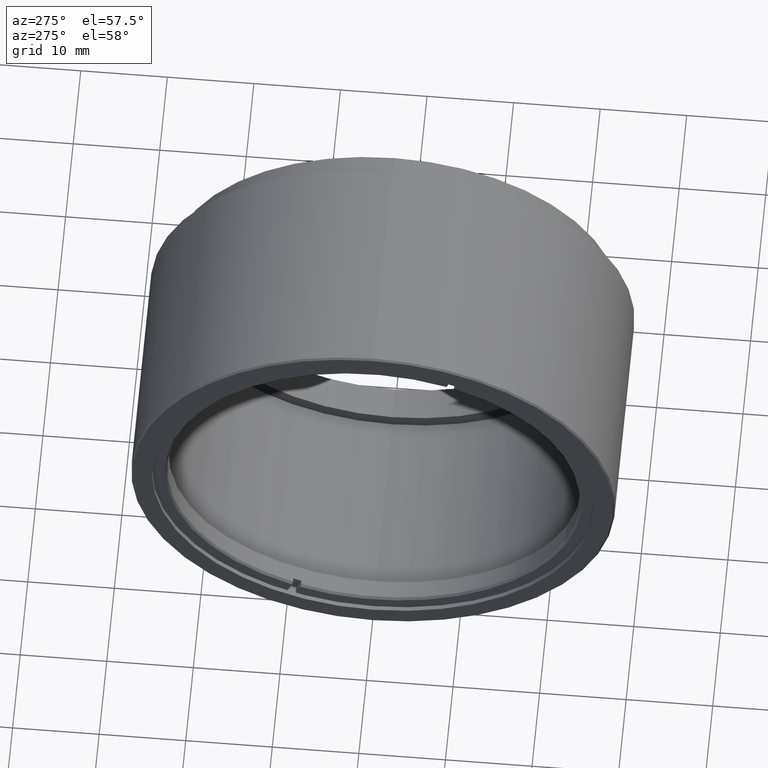
[diagram: clean part render]
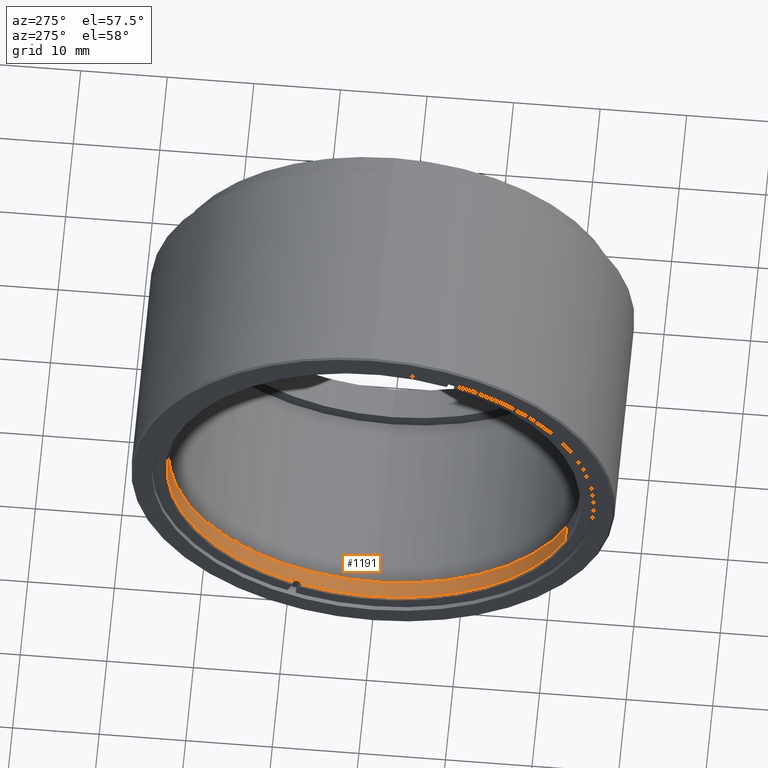
[diagram: same view with one face highlighted and labeled with its STEP entity id]
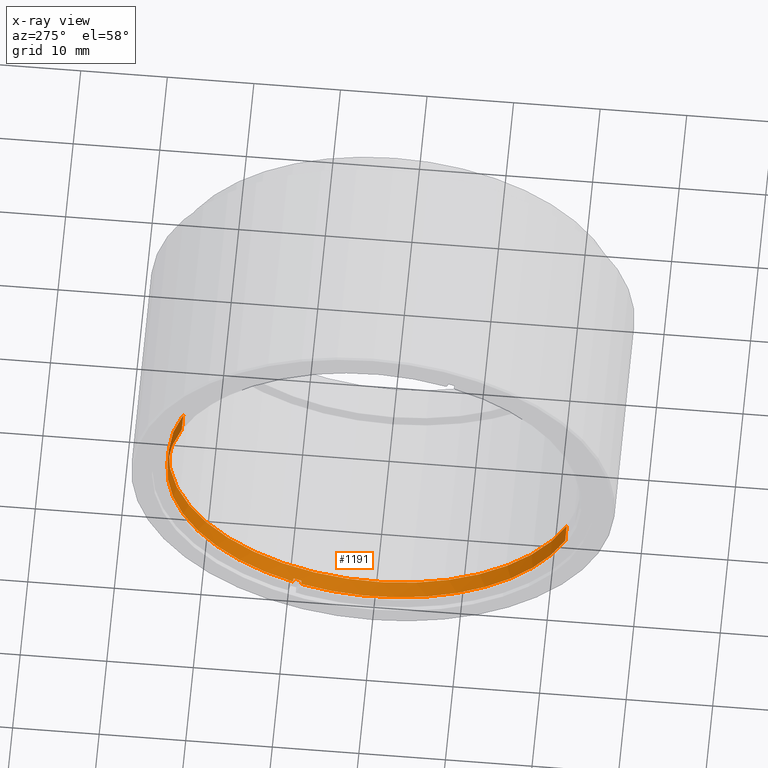
[diagram: x-ray of the same camera — body ghosted, the highlighted face saturated]
A machine part, auxiliary view. The second image highlights one B-rep face of the part: STEP entity #1191.
The next image is the same camera in x-ray: the body ghosted, the highlighted face saturated — about 0% of this face is hidden behind the body in this view.
In plain terms, the highlighted cylindrical surface (partial cylindrical patch) has radius 23.8445 mm, axis along (1, -0, 0).
Its self-contained STEP definition (entity closure, byte-faithful):
#11 = ORIENTED_EDGE ( 'NONE', *, *, #587, .T. ) ;
#44 = CARTESIAN_POINT ( 'NONE',  ( -22.17400000000001015, 2.039799741865230942, 8.832317631662180091 ) ) ;
#51 = CARTESIAN_POINT ( 'NONE',  ( -21.92399999999999238, -42.25694259900807026, -8.832317631662180091 ) ) ;
#73 = CARTESIAN_POINT ( 'NONE',  ( -22.17400000000001015, -11.74262936890998255, -22.32870783776767709 ) ) ;
#89 = DIRECTION ( 'NONE',  ( 1.000000000000000000, -0.000000000000000000, 0.000000000000000000 ) ) ;
#105 = DIRECTION ( 'NONE',  ( -1.000000000000000000, 0.000000000000000000, 0.000000000000000000 ) ) ;
#126 = LINE ( 'NONE', #73, #661 ) ;
#153 = CIRCLE ( 'NONE', #1583, 23.84450000000000003 ) ;
#164 = EDGE_LOOP ( 'NONE', ( #1399, #11, #243, #1204, #1638, #285, #1278, #224 ) ) ;
#175 = EDGE_CURVE ( 'NONE', #1437, #772, #1431, .T. ) ;
#201 = EDGE_CURVE ( 'NONE', #1171, #1541, #890, .T. ) ;
#224 = ORIENTED_EDGE ( 'NONE', *, *, #1564, .F. ) ;
#243 = ORIENTED_EDGE ( 'NONE', *, *, #175, .T. ) ;
#285 = ORIENTED_EDGE ( 'NONE', *, *, #201, .F. ) ;
#291 = CARTESIAN_POINT ( 'NONE',  ( -21.92399999999999238, -20.10857142857141966, 0.000000000000000000 ) ) ;
#292 = AXIS2_PLACEMENT_3D ( 'NONE', #1502, #89, #860 ) ;
#338 = CARTESIAN_POINT ( 'NONE',  ( -19.92400000000000659, -20.10857142857141966, 0.000000000000000000 ) ) ;
#341 = DIRECTION ( 'NONE',  ( 1.000000000000000000, -0.000000000000000000, 0.000000000000000000 ) ) ;
#446 = CARTESIAN_POINT ( 'NONE',  ( -21.47400000000001086, -10.81376228549717666, -21.95829463423385519 ) ) ;
#447 = CARTESIAN_POINT ( 'NONE',  ( -21.92399999999999594, -10.81376228549717666, -21.95829463423385519 ) ) ;
#456 = VECTOR ( 'NONE', #1132, 1000.000000000000000 ) ;
#491 = CARTESIAN_POINT ( 'NONE',  ( -21.47400000000001086, -20.10857142857141966, 0.000000000000000000 ) ) ;
#493 = AXIS2_PLACEMENT_3D ( 'NONE', #1181, #800, #1050 ) ;
#502 = EDGE_CURVE ( 'NONE', #1518, #1541, #1493, .T. ) ;
#537 = DIRECTION ( 'NONE',  ( 0.000000000000000000, -0.9288670834128058829, -0.3704132035338204010 ) ) ;
#540 = AXIS2_PLACEMENT_3D ( 'NONE', #291, #1303, #537 ) ;
#570 = LINE ( 'NONE', #1195, #959 ) ;
#587 = EDGE_CURVE ( 'NONE', #653, #1437, #570, .T. ) ;
#653 = VERTEX_POINT ( 'NONE', #51 ) ;
#661 = VECTOR ( 'NONE', #341, 1000.000000000000000 ) ;
#681 = DIRECTION ( 'NONE',  ( 1.000000000000000000, -0.000000000000000000, 0.000000000000000000 ) ) ;
#772 = VERTEX_POINT ( 'NONE', #1601 ) ;
#800 = DIRECTION ( 'NONE',  ( -1.000000000000000000, 0.000000000000000000, 0.000000000000000000 ) ) ;
#804 = AXIS2_PLACEMENT_3D ( 'NONE', #338, #1637, #1236 ) ;
#811 = EDGE_CURVE ( 'NONE', #1171, #970, #153, .T. ) ;
#812 = CARTESIAN_POINT ( 'NONE',  ( -21.92399999999999238, 2.039799741865230942, 8.832317631662180091 ) ) ;
#844 = DIRECTION ( 'NONE',  ( 1.000000000000000000, -0.000000000000000000, 0.000000000000000000 ) ) ;
#860 = DIRECTION ( 'NONE',  ( 0.000000000000000000, 0.9288670834128058829, 0.3704132035338204010 ) ) ;
#890 = LINE ( 'NONE', #1613, #456 ) ;
#902 = LINE ( 'NONE', #44, #929 ) ;
#929 = VECTOR ( 'NONE', #844, 1000.000000000000000 ) ;
#959 = VECTOR ( 'NONE', #681, 1000.000000000000000 ) ;
#964 = EDGE_CURVE ( 'NONE', #1223, #653, #1233, .T. ) ;
#970 = VERTEX_POINT ( 'NONE', #1543 ) ;
#995 = DIRECTION ( 'NONE',  ( 0.000000000000000000, -0.9288670834128058829, -0.3704132035338204010 ) ) ;
#1050 = DIRECTION ( 'NONE',  ( 0.000000000000000000, -0.9288670834128058829, -0.3704132035338204010 ) ) ;
#1073 = CYLINDRICAL_SURFACE ( 'NONE', #292, 23.84450000000000003 ) ;
#1132 = DIRECTION ( 'NONE',  ( -1.000000000000000000, 0.000000000000000000, -0.000000000000000000 ) ) ;
#1136 = CARTESIAN_POINT ( 'NONE',  ( -21.92399999999999238, -11.74262936890998255, -22.32870783776767709 ) ) ;
#1139 = FACE_OUTER_BOUND ( 'NONE', #164, .T. ) ;
#1171 = VERTEX_POINT ( 'NONE', #446 ) ;
#1181 = CARTESIAN_POINT ( 'NONE',  ( -21.92399999999999238, -20.10857142857141966, 0.000000000000000000 ) ) ;
#1191 = ADVANCED_FACE ( 'NONE', ( #1139 ), #1073, .F. ) ;
#1195 = CARTESIAN_POINT ( 'NONE',  ( -22.17400000000001015, -42.25694259900807026, -8.832317631662176538 ) ) ;
#1204 = ORIENTED_EDGE ( 'NONE', *, *, #1573, .F. ) ;
#1223 = VERTEX_POINT ( 'NONE', #1136 ) ;
#1233 = CIRCLE ( 'NONE', #493, 23.84450000000000003 ) ;
#1236 = DIRECTION ( 'NONE',  ( 0.000000000000000000, -0.9288670834128058829, -0.3704132035338204010 ) ) ;
#1278 = ORIENTED_EDGE ( 'NONE', *, *, #811, .T. ) ;
#1303 = DIRECTION ( 'NONE',  ( -1.000000000000000000, 0.000000000000000000, 0.000000000000000000 ) ) ;
#1399 = ORIENTED_EDGE ( 'NONE', *, *, #964, .T. ) ;
#1422 = CARTESIAN_POINT ( 'NONE',  ( -19.92400000000000659, -42.25694259900807026, -8.832317631662176538 ) ) ;
#1431 = CIRCLE ( 'NONE', #804, 23.84450000000000003 ) ;
#1437 = VERTEX_POINT ( 'NONE', #1422 ) ;
#1493 = CIRCLE ( 'NONE', #540, 23.84450000000000003 ) ;
#1502 = CARTESIAN_POINT ( 'NONE',  ( -22.17400000000001015, -20.10857142857141966, 0.000000000000000000 ) ) ;
#1518 = VERTEX_POINT ( 'NONE', #812 ) ;
#1541 = VERTEX_POINT ( 'NONE', #447 ) ;
#1543 = CARTESIAN_POINT ( 'NONE',  ( -21.47400000000001086, -11.74262936890998255, -22.32870783776767709 ) ) ;
#1564 = EDGE_CURVE ( 'NONE', #1223, #970, #126, .T. ) ;
#1573 = EDGE_CURVE ( 'NONE', #1518, #772, #902, .T. ) ;
#1583 = AXIS2_PLACEMENT_3D ( 'NONE', #491, #105, #995 ) ;
#1601 = CARTESIAN_POINT ( 'NONE',  ( -19.92400000000000659, 2.039799741865230942, 8.832317631662180091 ) ) ;
#1613 = CARTESIAN_POINT ( 'NONE',  ( -22.17400000000001015, -10.81376228549717666, -21.95829463423385519 ) ) ;
#1637 = DIRECTION ( 'NONE',  ( 1.000000000000000000, -0.000000000000000000, -0.000000000000000000 ) ) ;
#1638 = ORIENTED_EDGE ( 'NONE', *, *, #502, .T. ) ;